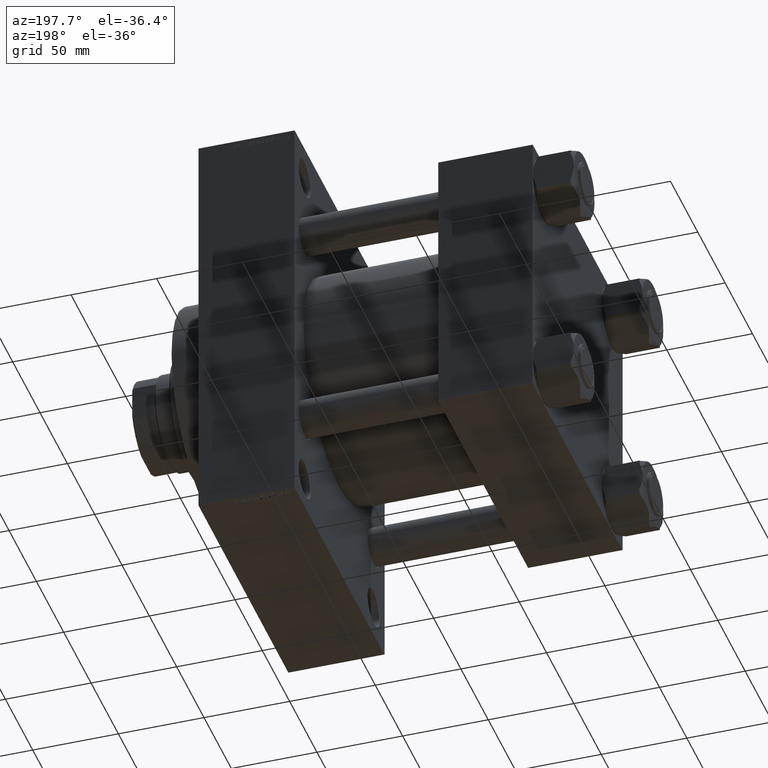
[diagram: clean part render]
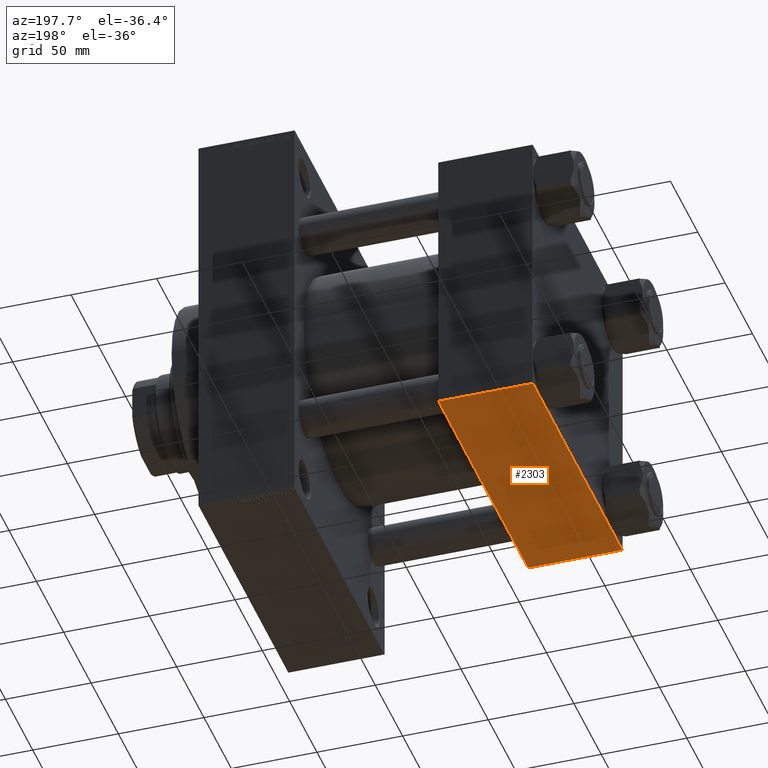
[diagram: same view with one face highlighted and labeled with its STEP entity id]
A machine part, auxiliary view. The second image highlights one B-rep face of the part: STEP entity #2303.
In plain terms, the highlighted planar face has unit normal (0, 0, -1).
Its self-contained STEP definition (entity closure, byte-faithful):
#322 = LINE ( 'NONE', #11426, #11216 ) ;
#2303 = ADVANCED_FACE ( 'NONE', ( #17986 ), #32691, .T. ) ;
#2614 = VERTEX_POINT ( 'NONE', #26306 ) ;
#4343 = VERTEX_POINT ( 'NONE', #4487 ) ;
#4487 = CARTESIAN_POINT ( 'NONE',  ( 55.00000000000000000, 82.00000000000004263, -82.49999999999998579 ) ) ;
#8987 = CARTESIAN_POINT ( 'NONE',  ( 55.00000000000000000, 82.50000000000001421, -82.49999999999998579 ) ) ;
#10762 = DIRECTION ( 'NONE',  ( 0.000000000000000000, 0.000000000000000000, -1.000000000000000000 ) ) ;
#11216 = VECTOR ( 'NONE', #26129, 1000.000000000000000 ) ;
#11426 = CARTESIAN_POINT ( 'NONE',  ( 0.000000000000000000, -81.99999999999995737, -82.49999999999998579 ) ) ;
#12687 = EDGE_LOOP ( 'NONE', ( #45802, #19219, #27042, #39105 ) ) ;
#14476 = CARTESIAN_POINT ( 'NONE',  ( 0.000000000000000000, 82.50000000000001421, -82.49999999999998579 ) ) ;
#15957 = VECTOR ( 'NONE', #23688, 1000.000000000000000 ) ;
#16073 = VECTOR ( 'NONE', #38071, 1000.000000000000000 ) ;
#17986 = FACE_OUTER_BOUND ( 'NONE', #12687, .T. ) ;
#18959 = EDGE_CURVE ( 'NONE', #20237, #28153, #322, .T. ) ;
#19219 = ORIENTED_EDGE ( 'NONE', *, *, #28752, .T. ) ;
#20237 = VERTEX_POINT ( 'NONE', #40730 ) ;
#20768 = DIRECTION ( 'NONE',  ( 1.000000000000000000, 0.000000000000000000, 0.000000000000000000 ) ) ;
#23419 = EDGE_CURVE ( 'NONE', #4343, #20237, #42005, .T. ) ;
#23688 = DIRECTION ( 'NONE',  ( 0.000000000000000000, -1.000000000000000000, 0.000000000000000000 ) ) ;
#25472 = CARTESIAN_POINT ( 'NONE',  ( 55.00000000000000000, 82.50000000000001421, -82.49999999999998579 ) ) ;
#26129 = DIRECTION ( 'NONE',  ( -1.000000000000000000, 0.000000000000000000, 0.000000000000000000 ) ) ;
#26306 = CARTESIAN_POINT ( 'NONE',  ( 0.000000000000000000, 82.00000000000004263, -82.49999999999998579 ) ) ;
#27042 = ORIENTED_EDGE ( 'NONE', *, *, #23419, .T. ) ;
#27760 = LINE ( 'NONE', #31853, #41578 ) ;
#28153 = VERTEX_POINT ( 'NONE', #44929 ) ;
#28752 = EDGE_CURVE ( 'NONE', #2614, #4343, #27760, .T. ) ;
#30415 = AXIS2_PLACEMENT_3D ( 'NONE', #25472, #10762, #40178 ) ;
#31853 = CARTESIAN_POINT ( 'NONE',  ( 55.00000000000000000, 82.00000000000004263, -82.49999999999998579 ) ) ;
#32691 = PLANE ( 'NONE',  #30415 ) ;
#38071 = DIRECTION ( 'NONE',  ( 0.000000000000000000, -1.000000000000000000, 0.000000000000000000 ) ) ;
#39105 = ORIENTED_EDGE ( 'NONE', *, *, #18959, .T. ) ;
#40178 = DIRECTION ( 'NONE',  ( -1.000000000000000000, 0.000000000000000000, -0.000000000000000000 ) ) ;
#40730 = CARTESIAN_POINT ( 'NONE',  ( 55.00000000000000000, -81.99999999999995737, -82.49999999999998579 ) ) ;
#41102 = EDGE_CURVE ( 'NONE', #2614, #28153, #43653, .T. ) ;
#41578 = VECTOR ( 'NONE', #20768, 1000.000000000000000 ) ;
#42005 = LINE ( 'NONE', #8987, #15957 ) ;
#43653 = LINE ( 'NONE', #14476, #16073 ) ;
#44929 = CARTESIAN_POINT ( 'NONE',  ( 0.000000000000000000, -81.99999999999995737, -82.49999999999998579 ) ) ;
#45802 = ORIENTED_EDGE ( 'NONE', *, *, #41102, .F. ) ;